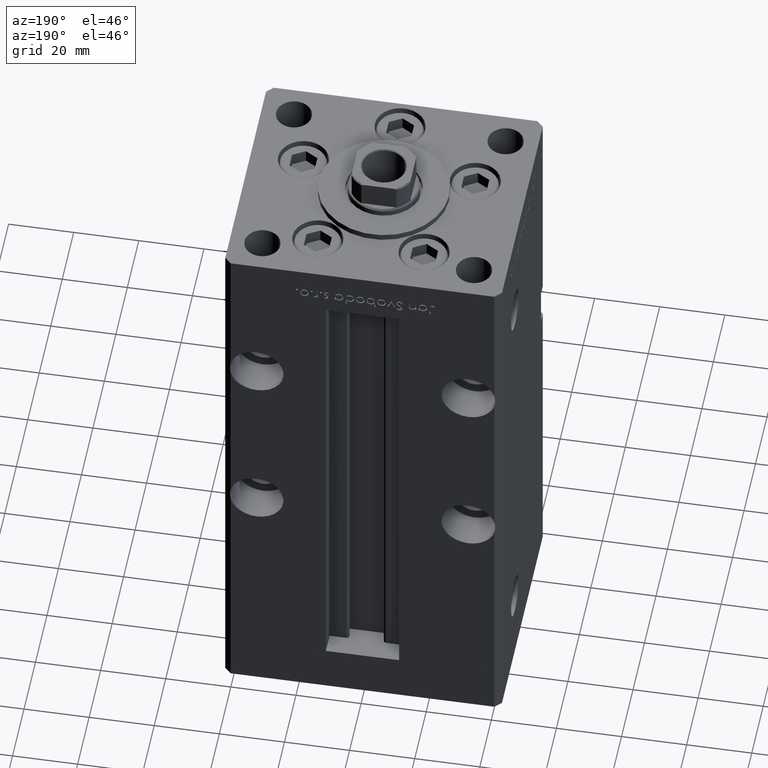
[diagram: clean part render]
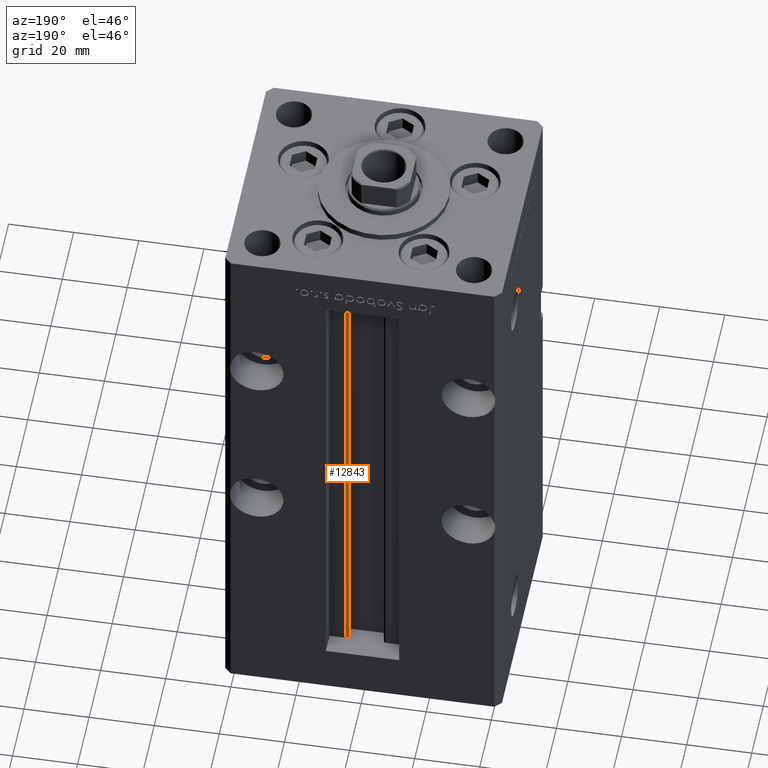
[diagram: same view with one face highlighted and labeled with its STEP entity id]
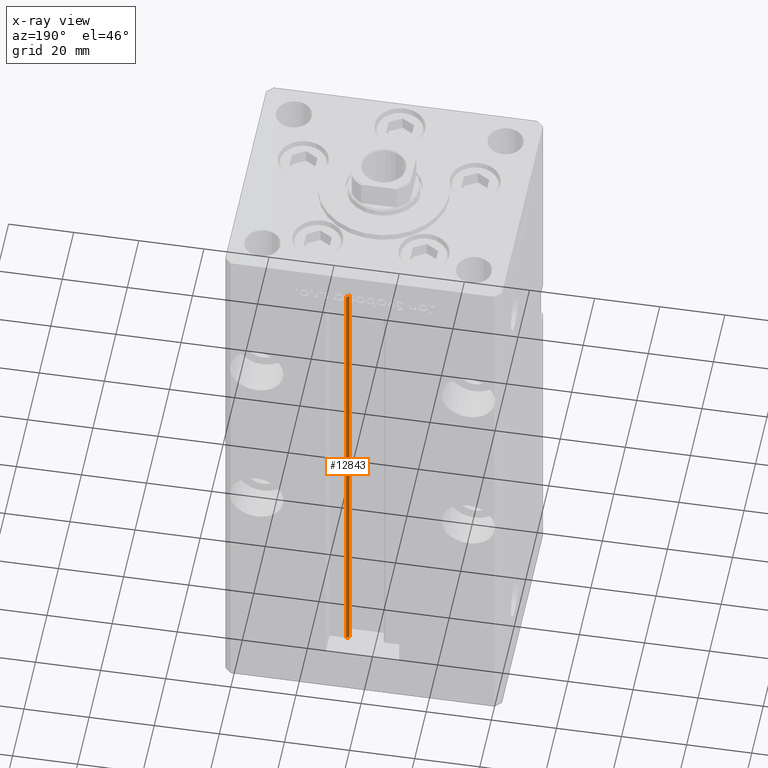
[diagram: x-ray of the same camera — body ghosted, the highlighted face saturated]
A machine part, auxiliary view. The second image highlights one B-rep face of the part: STEP entity #12843.
The next image is the same camera in x-ray: the body ghosted, the highlighted face saturated — about 0% of this face is hidden behind the body in this view.
In plain terms, the highlighted cylindrical surface (edge-blend (fillet) strip) has radius 0.9333 mm, axis along (0, 0, 1).
Its self-contained STEP definition (entity closure, byte-faithful):
#630 = LINE ( 'NONE', #40706, #32137 ) ;
#1313 = CARTESIAN_POINT ( 'NONE',  ( 5.375042956467947164, 29.59999999999899245, 0.000000000000000000 ) ) ;
#1631 = AXIS2_PLACEMENT_3D ( 'NONE', #43003, #42472, #5628 ) ;
#2399 = DIRECTION ( 'NONE',  ( -0.000000000000000000, -0.000000000000000000, 1.000000000000000000 ) ) ;
#3141 = EDGE_CURVE ( 'NONE', #18822, #51133, #10743, .T. ) ;
#3800 = ORIENTED_EDGE ( 'NONE', *, *, #33711, .T. ) ;
#3916 = CARTESIAN_POINT ( 'NONE',  ( 5.375042956467947164, 29.59999999999899245, 0.000000000000000000 ) ) ;
#5499 = EDGE_CURVE ( 'NONE', #18822, #15766, #6594, .T. ) ;
#5628 = DIRECTION ( 'NONE',  ( 1.000000000000000000, 0.000000000000000000, 0.000000000000000000 ) ) ;
#6594 = CIRCLE ( 'NONE', #27208, 0.9333333333340008142 ) ;
#6882 = CARTESIAN_POINT ( 'NONE',  ( 6.183333333333997928, 30.06666666666599852, 0.000000000000000000 ) ) ;
#10743 = LINE ( 'NONE', #3916, #53140 ) ;
#12843 = ADVANCED_FACE ( 'NONE', ( #51322 ), #18012, .T. ) ;
#13089 = DIRECTION ( 'NONE',  ( 1.000000000000000000, 0.000000000000000000, 0.000000000000000000 ) ) ;
#15766 = VERTEX_POINT ( 'NONE', #28088 ) ;
#18012 = CYLINDRICAL_SURFACE ( 'NONE', #1631, 0.9333333333340008142 ) ;
#18822 = VERTEX_POINT ( 'NONE', #1313 ) ;
#22519 = ORIENTED_EDGE ( 'NONE', *, *, #5499, .F. ) ;
#27208 = AXIS2_PLACEMENT_3D ( 'NONE', #6882, #43470, #52828 ) ;
#28088 = CARTESIAN_POINT ( 'NONE',  ( 6.183333333333997928, 31.00000000000000000, 0.000000000000000000 ) ) ;
#32137 = VECTOR ( 'NONE', #45520, 1000.000000000000000 ) ;
#33711 = EDGE_CURVE ( 'NONE', #51133, #44053, #36388, .T. ) ;
#33783 = DIRECTION ( 'NONE',  ( 0.000000000000000000, 0.000000000000000000, -1.000000000000000000 ) ) ;
#36039 = EDGE_CURVE ( 'NONE', #15766, #44053, #630, .T. ) ;
#36388 = CIRCLE ( 'NONE', #41528, 0.9333333333340008142 ) ;
#39335 = CARTESIAN_POINT ( 'NONE',  ( 6.183333333333997928, 31.00000000000000000, 148.5000000000000000 ) ) ;
#40706 = CARTESIAN_POINT ( 'NONE',  ( 6.183333333333997928, 31.00000000000000000, 0.000000000000000000 ) ) ;
#41212 = CARTESIAN_POINT ( 'NONE',  ( 5.375042956467946276, 29.59999999999899600, 148.5000000000000000 ) ) ;
#41528 = AXIS2_PLACEMENT_3D ( 'NONE', #49898, #33783, #13089 ) ;
#42472 = DIRECTION ( 'NONE',  ( -0.000000000000000000, -0.000000000000000000, 1.000000000000000000 ) ) ;
#43003 = CARTESIAN_POINT ( 'NONE',  ( 6.183333333333997928, 30.06666666666599852, 0.000000000000000000 ) ) ;
#43470 = DIRECTION ( 'NONE',  ( -0.000000000000000000, -0.000000000000000000, -1.000000000000000000 ) ) ;
#44053 = VERTEX_POINT ( 'NONE', #39335 ) ;
#45520 = DIRECTION ( 'NONE',  ( -0.000000000000000000, -0.000000000000000000, 1.000000000000000000 ) ) ;
#47678 = ORIENTED_EDGE ( 'NONE', *, *, #36039, .F. ) ;
#49898 = CARTESIAN_POINT ( 'NONE',  ( 6.183333333333997928, 30.06666666666599852, 148.5000000000000000 ) ) ;
#50420 = ORIENTED_EDGE ( 'NONE', *, *, #3141, .T. ) ;
#51133 = VERTEX_POINT ( 'NONE', #41212 ) ;
#51225 = EDGE_LOOP ( 'NONE', ( #47678, #22519, #50420, #3800 ) ) ;
#51322 = FACE_OUTER_BOUND ( 'NONE', #51225, .T. ) ;
#52828 = DIRECTION ( 'NONE',  ( 1.000000000000000000, 0.000000000000000000, 0.000000000000000000 ) ) ;
#53140 = VECTOR ( 'NONE', #2399, 1000.000000000000000 ) ;